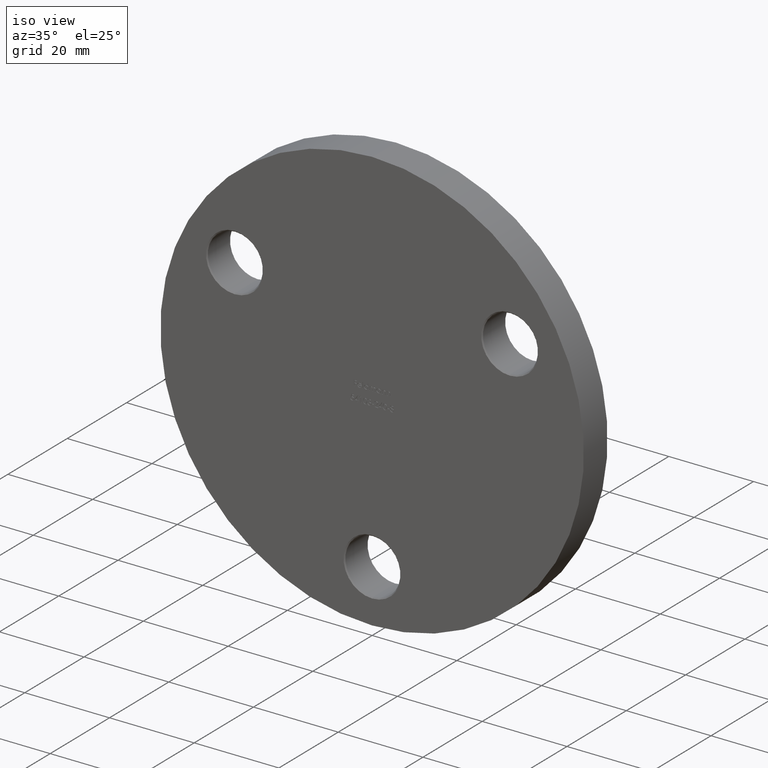
[diagram: clean part render]
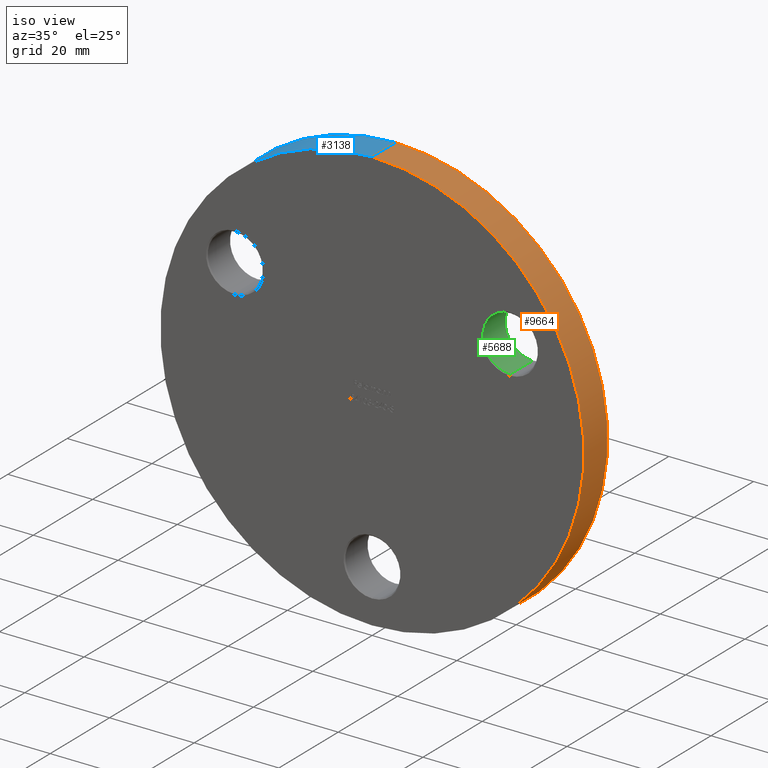
[diagram: same view with three faces highlighted in distinct colors, each labeled with its STEP entity id]
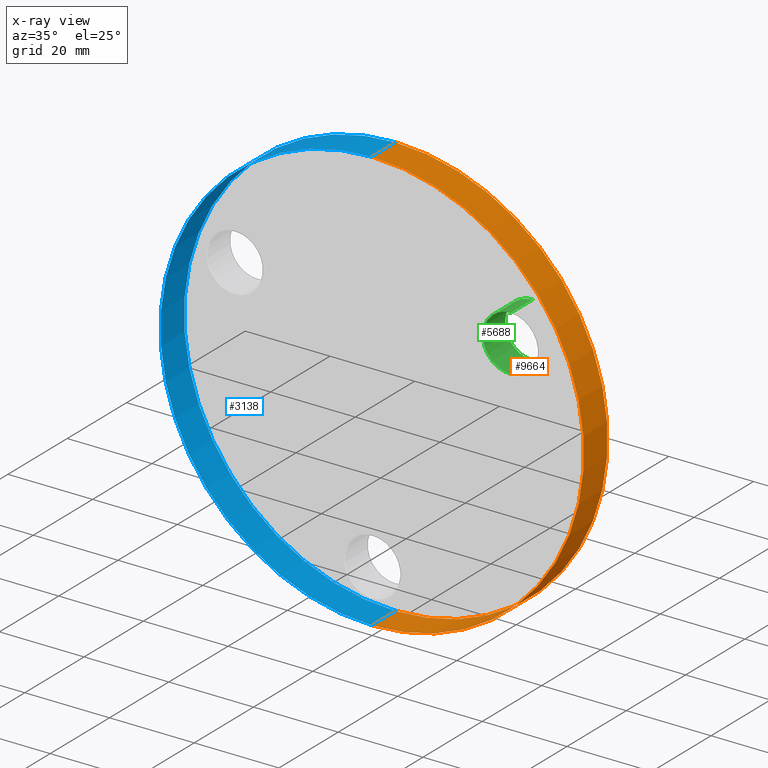
[diagram: x-ray of the same camera — body ghosted, the three highlighted faces saturated]
A machine part, iso view with three faces highlighted in distinct colors.
The next image is the same camera in x-ray (body ghosted, the three faces saturated) — at least one of them is partly hidden behind the body in this view.
Their STEP definitions:

[orange] entity #9664 — the highlighted cylindrical surface (partial cylindrical patch) has radius 50 mm, axis along (-0, -1, -0).
#326 = CIRCLE ( 'NONE', #3700, 50.00000000000000000 ) ;
#632 = EDGE_CURVE ( 'NONE', #2478, #9067, #7714, .T. ) ;
#1427 = CARTESIAN_POINT ( 'NONE',  ( 6.123233995736766085E-15, 0.000000000000000000, 50.00000000000000000 ) ) ;
#1429 = DIRECTION ( 'NONE',  ( -0.000000000000000000, -1.000000000000000000, -0.000000000000000000 ) ) ;
#1707 = ORIENTED_EDGE ( 'NONE', *, *, #8177, .F. ) ;
#2362 = CARTESIAN_POINT ( 'NONE',  ( 6.123233995736766085E-15, 8.000000000000000000, 50.00000000000000000 ) ) ;
#2478 = VERTEX_POINT ( 'NONE', #2362 ) ;
#2607 = CARTESIAN_POINT ( 'NONE',  ( 0.000000000000000000, 0.000000000000000000, 0.000000000000000000 ) ) ;
#2664 = CARTESIAN_POINT ( 'NONE',  ( 6.123233995736766085E-15, 8.000000000000000000, 50.00000000000000000 ) ) ;
#3081 = DIRECTION ( 'NONE',  ( 0.000000000000000000, 0.000000000000000000, 1.000000000000000000 ) ) ;
#3700 = AXIS2_PLACEMENT_3D ( 'NONE', #2607, #11694, #12891 ) ;
#3776 = DIRECTION ( 'NONE',  ( -0.000000000000000000, -1.000000000000000000, -0.000000000000000000 ) ) ;
#4013 = VERTEX_POINT ( 'NONE', #9397 ) ;
#4323 = FACE_OUTER_BOUND ( 'NONE', #5345, .T. ) ;
#4746 = AXIS2_PLACEMENT_3D ( 'NONE', #6017, #3776, #13852 ) ;
#4957 = CARTESIAN_POINT ( 'NONE',  ( 0.000000000000000000, 8.000000000000000000, -50.00000000000000000 ) ) ;
#5345 = EDGE_LOOP ( 'NONE', ( #6854, #10211, #9545, #1707 ) ) ;
#5707 = VECTOR ( 'NONE', #1429, 1000.000000000000000 ) ;
#5785 = EDGE_CURVE ( 'NONE', #9067, #4013, #326, .T. ) ;
#6017 = CARTESIAN_POINT ( 'NONE',  ( 0.000000000000000000, 8.000000000000000000, 0.000000000000000000 ) ) ;
#6189 = CIRCLE ( 'NONE', #14133, 50.00000000000000000 ) ;
#6297 = DIRECTION ( 'NONE',  ( 0.000000000000000000, 1.000000000000000000, 0.000000000000000000 ) ) ;
#6854 = ORIENTED_EDGE ( 'NONE', *, *, #12680, .F. ) ;
#7714 = LINE ( 'NONE', #2664, #9478 ) ;
#8177 = EDGE_CURVE ( 'NONE', #13191, #4013, #12364, .T. ) ;
#8665 = CARTESIAN_POINT ( 'NONE',  ( 0.000000000000000000, 8.000000000000000000, 0.000000000000000000 ) ) ;
#9067 = VERTEX_POINT ( 'NONE', #1427 ) ;
#9397 = CARTESIAN_POINT ( 'NONE',  ( 0.000000000000000000, 0.000000000000000000, -50.00000000000000000 ) ) ;
#9478 = VECTOR ( 'NONE', #10493, 1000.000000000000000 ) ;
#9545 = ORIENTED_EDGE ( 'NONE', *, *, #5785, .T. ) ;
#9664 = ADVANCED_FACE ( 'NONE', ( #4323 ), #9742, .T. ) ;
#9742 = CYLINDRICAL_SURFACE ( 'NONE', #4746, 50.00000000000000000 ) ;
#10211 = ORIENTED_EDGE ( 'NONE', *, *, #632, .T. ) ;
#10493 = DIRECTION ( 'NONE',  ( -0.000000000000000000, -1.000000000000000000, -0.000000000000000000 ) ) ;
#11350 = CARTESIAN_POINT ( 'NONE',  ( 0.000000000000000000, 8.000000000000000000, -50.00000000000000000 ) ) ;
#11694 = DIRECTION ( 'NONE',  ( 0.000000000000000000, 1.000000000000000000, 0.000000000000000000 ) ) ;
#12364 = LINE ( 'NONE', #11350, #5707 ) ;
#12680 = EDGE_CURVE ( 'NONE', #2478, #13191, #6189, .T. ) ;
#12891 = DIRECTION ( 'NONE',  ( 0.000000000000000000, 0.000000000000000000, 1.000000000000000000 ) ) ;
#13191 = VERTEX_POINT ( 'NONE', #4957 ) ;
#13852 = DIRECTION ( 'NONE',  ( 0.000000000000000000, 0.000000000000000000, -1.000000000000000000 ) ) ;
#14133 = AXIS2_PLACEMENT_3D ( 'NONE', #8665, #6297, #3081 ) ;

[blue] entity #3138 — the highlighted cylindrical surface (partial cylindrical patch) has radius 50 mm, axis along (-0, -1, -0).
#124 = EDGE_CURVE ( 'NONE', #13191, #2478, #6505, .T. ) ;
#222 = DIRECTION ( 'NONE',  ( 0.000000000000000000, 0.000000000000000000, 1.000000000000000000 ) ) ;
#616 = DIRECTION ( 'NONE',  ( 0.000000000000000000, 1.000000000000000000, 0.000000000000000000 ) ) ;
#632 = EDGE_CURVE ( 'NONE', #2478, #9067, #7714, .T. ) ;
#1182 = ORIENTED_EDGE ( 'NONE', *, *, #124, .F. ) ;
#1427 = CARTESIAN_POINT ( 'NONE',  ( 6.123233995736766085E-15, 0.000000000000000000, 50.00000000000000000 ) ) ;
#1429 = DIRECTION ( 'NONE',  ( -0.000000000000000000, -1.000000000000000000, -0.000000000000000000 ) ) ;
#2103 = FACE_OUTER_BOUND ( 'NONE', #6358, .T. ) ;
#2362 = CARTESIAN_POINT ( 'NONE',  ( 6.123233995736766085E-15, 8.000000000000000000, 50.00000000000000000 ) ) ;
#2478 = VERTEX_POINT ( 'NONE', #2362 ) ;
#2664 = CARTESIAN_POINT ( 'NONE',  ( 6.123233995736766085E-15, 8.000000000000000000, 50.00000000000000000 ) ) ;
#3078 = CIRCLE ( 'NONE', #9445, 50.00000000000000000 ) ;
#3138 = ADVANCED_FACE ( 'NONE', ( #2103 ), #13661, .T. ) ;
#3168 = DIRECTION ( 'NONE',  ( 0.000000000000000000, 0.000000000000000000, -1.000000000000000000 ) ) ;
#4013 = VERTEX_POINT ( 'NONE', #9397 ) ;
#4290 = DIRECTION ( 'NONE',  ( -0.000000000000000000, -1.000000000000000000, -0.000000000000000000 ) ) ;
#4957 = CARTESIAN_POINT ( 'NONE',  ( 0.000000000000000000, 8.000000000000000000, -50.00000000000000000 ) ) ;
#5707 = VECTOR ( 'NONE', #1429, 1000.000000000000000 ) ;
#6136 = DIRECTION ( 'NONE',  ( 0.000000000000000000, 0.000000000000000000, 1.000000000000000000 ) ) ;
#6358 = EDGE_LOOP ( 'NONE', ( #8209, #1182, #13169, #7709 ) ) ;
#6505 = CIRCLE ( 'NONE', #9208, 50.00000000000000000 ) ;
#6860 = DIRECTION ( 'NONE',  ( 0.000000000000000000, 1.000000000000000000, 0.000000000000000000 ) ) ;
#7525 = AXIS2_PLACEMENT_3D ( 'NONE', #9819, #4290, #3168 ) ;
#7709 = ORIENTED_EDGE ( 'NONE', *, *, #11237, .T. ) ;
#7714 = LINE ( 'NONE', #2664, #9478 ) ;
#8177 = EDGE_CURVE ( 'NONE', #13191, #4013, #12364, .T. ) ;
#8209 = ORIENTED_EDGE ( 'NONE', *, *, #632, .F. ) ;
#8344 = CARTESIAN_POINT ( 'NONE',  ( 0.000000000000000000, 0.000000000000000000, 0.000000000000000000 ) ) ;
#9067 = VERTEX_POINT ( 'NONE', #1427 ) ;
#9208 = AXIS2_PLACEMENT_3D ( 'NONE', #12545, #6860, #222 ) ;
#9397 = CARTESIAN_POINT ( 'NONE',  ( 0.000000000000000000, 0.000000000000000000, -50.00000000000000000 ) ) ;
#9445 = AXIS2_PLACEMENT_3D ( 'NONE', #8344, #616, #6136 ) ;
#9478 = VECTOR ( 'NONE', #10493, 1000.000000000000000 ) ;
#9819 = CARTESIAN_POINT ( 'NONE',  ( 0.000000000000000000, 8.000000000000000000, 0.000000000000000000 ) ) ;
#10493 = DIRECTION ( 'NONE',  ( -0.000000000000000000, -1.000000000000000000, -0.000000000000000000 ) ) ;
#11237 = EDGE_CURVE ( 'NONE', #4013, #9067, #3078, .T. ) ;
#11350 = CARTESIAN_POINT ( 'NONE',  ( 0.000000000000000000, 8.000000000000000000, -50.00000000000000000 ) ) ;
#12364 = LINE ( 'NONE', #11350, #5707 ) ;
#12545 = CARTESIAN_POINT ( 'NONE',  ( 0.000000000000000000, 8.000000000000000000, 0.000000000000000000 ) ) ;
#13169 = ORIENTED_EDGE ( 'NONE', *, *, #8177, .T. ) ;
#13191 = VERTEX_POINT ( 'NONE', #4957 ) ;
#13661 = CYLINDRICAL_SURFACE ( 'NONE', #7525, 50.00000000000000000 ) ;

[green] entity #5688 — the highlighted cylindrical surface (edge-blend (fillet) strip) has radius 6.5 mm, axis along (-0, -1, -0).
#508 = CARTESIAN_POINT ( 'NONE',  ( 32.47595264191645015, 8.000000000000000000, 12.24999999999999467 ) ) ;
#638 = DIRECTION ( 'NONE',  ( -0.000000000000000000, -1.000000000000000000, -0.000000000000000000 ) ) ;
#676 = CARTESIAN_POINT ( 'NONE',  ( 32.47595264191645015, 0.2499999999999941436, 18.74999999999999645 ) ) ;
#1389 = ORIENTED_EDGE ( 'NONE', *, *, #9045, .T. ) ;
#2217 = AXIS2_PLACEMENT_3D ( 'NONE', #3635, #12493, #11442 ) ;
#3635 = CARTESIAN_POINT ( 'NONE',  ( 32.47595264191645015, 7.749999999999982236, 18.74999999999999645 ) ) ;
#3680 = EDGE_LOOP ( 'NONE', ( #1389, #4370, #13214, #6911 ) ) ;
#3957 = CARTESIAN_POINT ( 'NONE',  ( 32.47595264191645015, 8.000000000000000000, 25.24999999999999289 ) ) ;
#4226 = VERTEX_POINT ( 'NONE', #11050 ) ;
#4370 = ORIENTED_EDGE ( 'NONE', *, *, #13747, .T. ) ;
#4714 = CARTESIAN_POINT ( 'NONE',  ( 32.47595264191645015, 8.000000000000000000, 18.74999999999999645 ) ) ;
#4777 = VECTOR ( 'NONE', #638, 1000.000000000000000 ) ;
#4792 = LINE ( 'NONE', #508, #11957 ) ;
#4990 = CIRCLE ( 'NONE', #2217, 6.499999999999999112 ) ;
#5174 = DIRECTION ( 'NONE',  ( 0.000000000000000000, 0.000000000000000000, 1.000000000000000000 ) ) ;
#5419 = AXIS2_PLACEMENT_3D ( 'NONE', #676, #11961, #5174 ) ;
#5688 = ADVANCED_FACE ( 'NONE', ( #8201 ), #9600, .F. ) ;
#5858 = VERTEX_POINT ( 'NONE', #14304 ) ;
#6911 = ORIENTED_EDGE ( 'NONE', *, *, #13244, .F. ) ;
#7423 = CIRCLE ( 'NONE', #5419, 6.499999999999999112 ) ;
#7758 = LINE ( 'NONE', #3957, #4777 ) ;
#7993 = VERTEX_POINT ( 'NONE', #12154 ) ;
#8201 = FACE_OUTER_BOUND ( 'NONE', #3680, .T. ) ;
#9045 = EDGE_CURVE ( 'NONE', #7993, #5858, #4990, .T. ) ;
#9600 = CYLINDRICAL_SURFACE ( 'NONE', #11200, 6.500000000000000888 ) ;
#10153 = DIRECTION ( 'NONE',  ( 0.000000000000000000, 0.000000000000000000, -1.000000000000000000 ) ) ;
#11050 = CARTESIAN_POINT ( 'NONE',  ( 32.47595264191645015, 0.2499999999999941436, 25.24999999999999289 ) ) ;
#11162 = CARTESIAN_POINT ( 'NONE',  ( 32.47595264191645015, 0.2499999999999941436, 12.24999999999999467 ) ) ;
#11200 = AXIS2_PLACEMENT_3D ( 'NONE', #4714, #12404, #10153 ) ;
#11442 = DIRECTION ( 'NONE',  ( 0.000000000000000000, 0.000000000000000000, 1.000000000000000000 ) ) ;
#11957 = VECTOR ( 'NONE', #12045, 1000.000000000000000 ) ;
#11961 = DIRECTION ( 'NONE',  ( -0.000000000000000000, -1.000000000000000000, -0.000000000000000000 ) ) ;
#12045 = DIRECTION ( 'NONE',  ( -0.000000000000000000, -1.000000000000000000, -0.000000000000000000 ) ) ;
#12139 = EDGE_CURVE ( 'NONE', #4226, #14366, #7423, .T. ) ;
#12154 = CARTESIAN_POINT ( 'NONE',  ( 32.47595264191645015, 7.749999999999982236, 12.24999999999999467 ) ) ;
#12404 = DIRECTION ( 'NONE',  ( -0.000000000000000000, -1.000000000000000000, -0.000000000000000000 ) ) ;
#12493 = DIRECTION ( 'NONE',  ( 0.000000000000000000, 1.000000000000000000, 0.000000000000000000 ) ) ;
#13214 = ORIENTED_EDGE ( 'NONE', *, *, #12139, .T. ) ;
#13244 = EDGE_CURVE ( 'NONE', #7993, #14366, #4792, .T. ) ;
#13747 = EDGE_CURVE ( 'NONE', #5858, #4226, #7758, .T. ) ;
#14304 = CARTESIAN_POINT ( 'NONE',  ( 32.47595264191645015, 7.749999999999982236, 25.24999999999999289 ) ) ;
#14366 = VERTEX_POINT ( 'NONE', #11162 ) ;